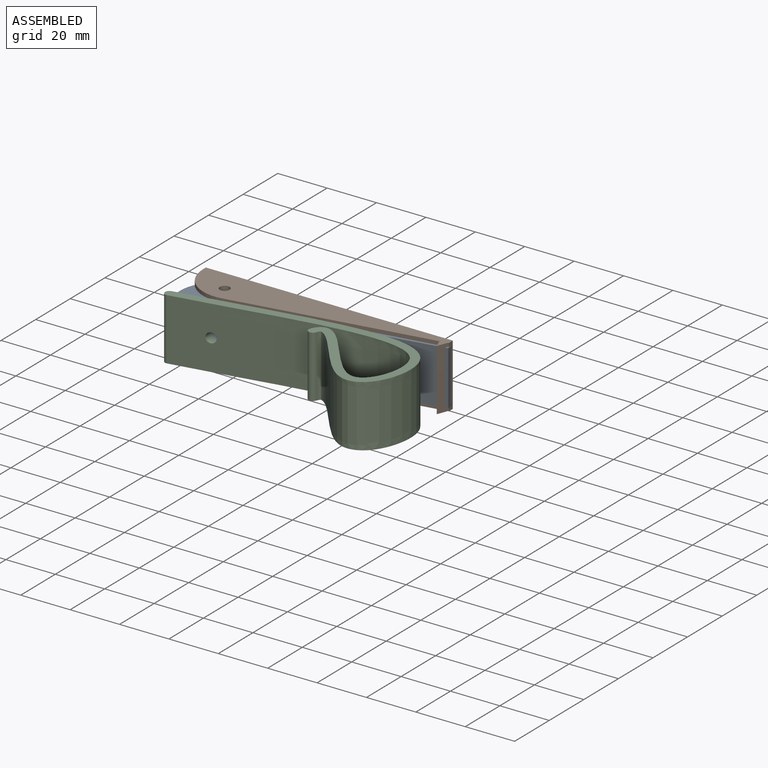
[diagram: assembled view]
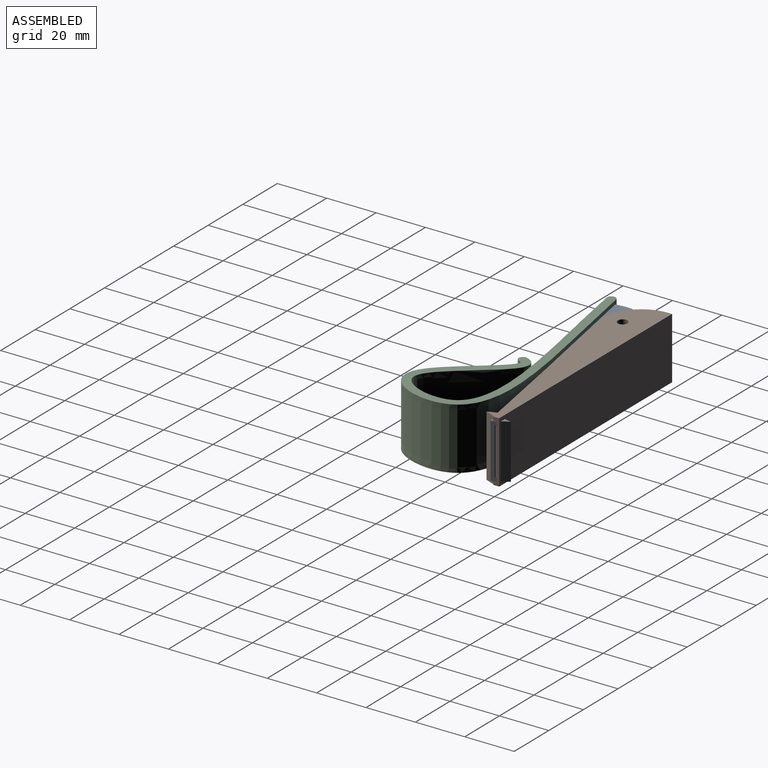
[diagram: assembled view, second angle]
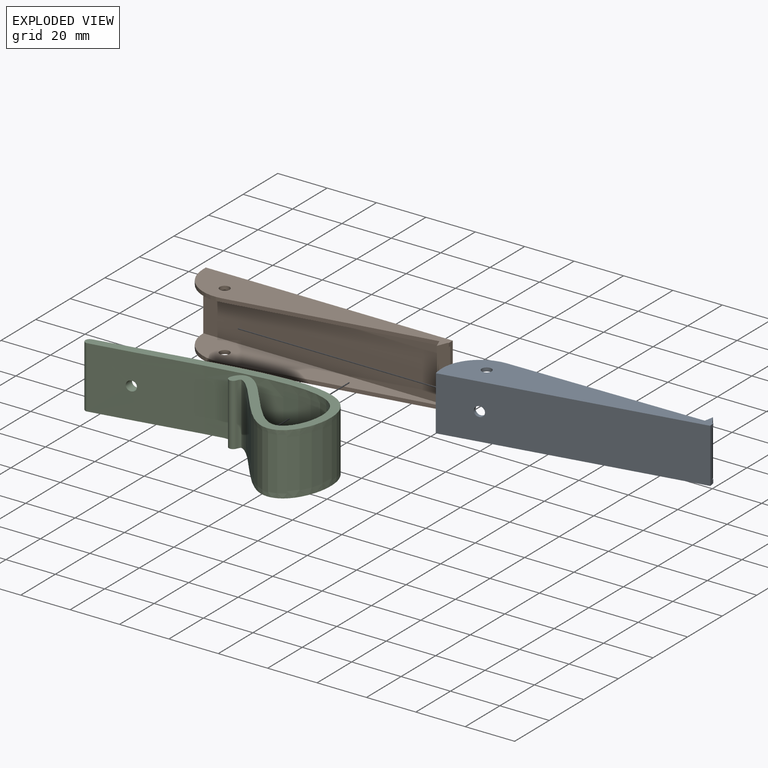
[diagram: exploded view]
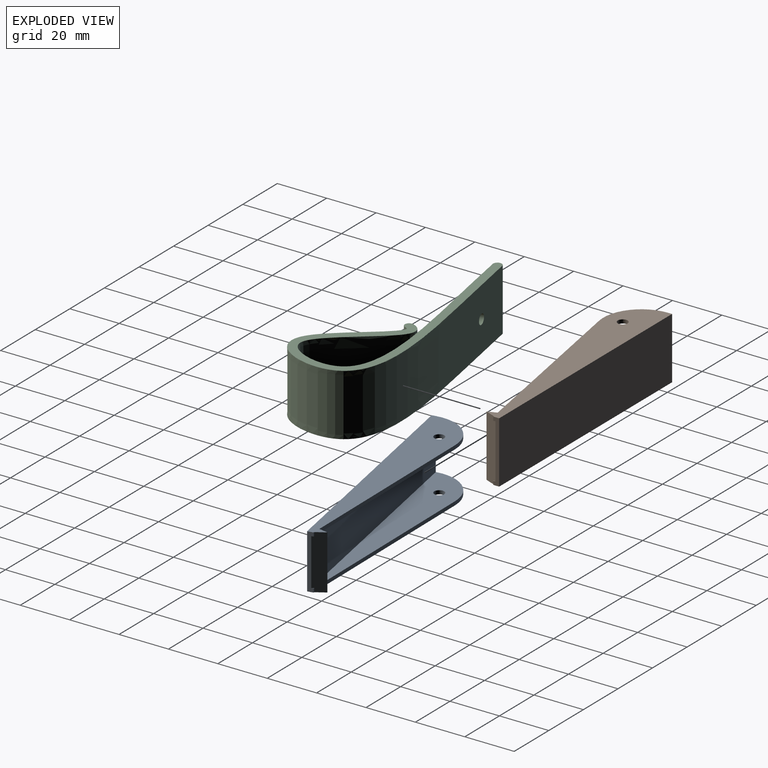
[diagram: exploded view, second angle]
ASSEMBLY  parts=3 mates=2
PART A: 21 faces, bbox 100x17x22 mm
  f0: plane 100x22mm, normal (0,1,0), area 2187.2mm2, adj f7,f8,f10,f11,f20
  f1: plane 96.07x19mm, normal (0,-1,0), area 1812.4mm2, adj f8,f12,f13,f15,f20
  f2: plane 1.5x0.37mm, normal (0.17,-0.98,0), area 0.6mm2, adj f4,f7,f11,f14
  f3: plane 1.5x0.37mm, normal (0.17,-0.98,0), area 0.6mm2, adj f5,f7,f10,f14
  f4: plane 0.93x0.37mm, normal (0,0,1), area 0.2mm2, adj f2,f7,f14
  f5: plane 0.93x0.37mm, normal (0,0,-1), area 0.2mm2, adj f3,f7,f14
  f6: plane 78.48x13.84mm, normal (0.17,-0.98,0), area 119.5mm2, adj f11,f12,f15,f16
  f7: plane 22x2.37mm, normal (1,0,0), area 35.6mm2, adj f0,f2,f3,f4,f5,f10,f11,f14
  f8: plane 22x1.56mm, normal (-1,0,0), area 33.2mm2, adj f0,f1,f10,f11,f12,f13,f16,f17
  f9: plane 78.48x13.84mm, normal (0.17,-0.98,0), area 119.5mm2, adj f10,f13,f15,f17
  f10: plane 100x17.03mm, normal (0,0,1), area 1035mm2, adj f0,f3,f7,f8,f9,f14,f15,f17
  f11: plane 100x17.03mm, normal (0,0,-1), area 1035mm2, adj f0,f2,f6,f7,f8,f14,f15,f16
  f12: plane 96.64x15.53mm, normal (0,0,1), area 875.1mm2, adj f1,f6,f8,f15,f16,f19
  f13: plane 96.64x15.53mm, normal (0,0,-1), area 875.1mm2, adj f1,f8,f9,f15,f17,f18
  f14: plane 22x5mm, normal (0.93,-0.37,0), area 115.2mm2, adj f2,f3,f4,f5,f7,f10,f11,f15
  f15: plane 22x5mm, normal (-0.93,-0.37,0), area 113.5mm2, adj f1,f6,f9,f10,f11,f12,f13,f14
  f16: cylinder r=15.48mm len=18.16mm, axis (0,0,-1), area 40.5mm2, adj f6,f8,f11,f12
  f17: cylinder r=15.48mm len=18.16mm, axis (0,0,-1), area 40.5mm2, adj f8,f9,f10,f13
  f18: cylinder r=2mm len=4mm, axis (0,0,-1), area 18.8mm2, adj f10,f13
  f19: cylinder r=2mm len=4mm, axis (0,0,-1), area 18.8mm2, adj f11,f12
  f20: extruded ~4.07x4mm, area 19mm2, adj f0,f1
PART B: 20 faces, bbox 100x17x25 mm
  f0: plane 96.07x22mm, normal (0,-1,0), area 2113.4mm2, adj f8,f12,f13,f15
  f1: plane 1.5x0.37mm, normal (0.17,-0.98,0), area 0.6mm2, adj f3,f6,f11,f14
  f2: plane 1.5x0.37mm, normal (0.17,-0.98,0), area 0.6mm2, adj f4,f6,f10,f14
  f3: plane 0.93x0.37mm, normal (0,0,1), area 0.2mm2, adj f1,f6,f14
  f4: plane 0.93x0.37mm, normal (0,0,-1), area 0.2mm2, adj f2,f6,f14
  f5: plane 78.45x13.83mm, normal (0.17,-0.98,0), area 119.5mm2, adj f11,f12,f15,f16
  f6: plane 25x2.37mm, normal (1,0,0), area 40.1mm2, adj f1,f2,f3,f4,f7,f10,f11,f14
  f7: plane 100x25mm, normal (0,1,0), area 2500mm2, adj f6,f8,f10,f11
  f8: plane 25x1.53mm, normal (-1,0,0), area 37.6mm2, adj f0,f7,f10,f11,f12,f13,f16,f17
  f9: plane 78.45x13.83mm, normal (0.17,-0.98,0), area 119.5mm2, adj f10,f13,f15,f17
  f10: plane 100x17.03mm, normal (0,0,1), area 1034.8mm2, adj f2,f6,f7,f8,f9,f14,f15,f17
  f11: plane 100x17.03mm, normal (0,0,-1), area 1034.8mm2, adj f1,f5,f6,f7,f8,f14,f15,f16
  f12: plane 96.64x15.53mm, normal (0,0,1), area 874.8mm2, adj f0,f5,f8,f15,f16,f19
  f13: plane 96.64x15.53mm, normal (0,0,-1), area 874.8mm2, adj f0,f8,f9,f15,f17,f18
  f14: plane 25x5mm, normal (0.93,-0.37,0), area 131.3mm2, adj f1,f2,f3,f4,f6,f10,f11,f15
  f15: plane 25x5mm, normal (-0.93,-0.37,0), area 129.6mm2, adj f0,f5,f9,f10,f11,f12,f13,f14
  f16: cylinder r=15.5mm len=18.19mm, axis (0,0,-1), area 40.6mm2, adj f5,f8,f11,f12
  f17: cylinder r=15.5mm len=18.19mm, axis (0,0,-1), area 40.6mm2, adj f8,f9,f10,f13
  f18: cylinder r=2mm len=4mm, axis (0,0,1), area 18.8mm2, adj f10,f13
  f19: cylinder r=2mm len=4mm, axis (0,0,1), area 18.8mm2, adj f11,f12
PART C: 8 faces, bbox 101.9x35.8x25.2 mm
  f0: plane 33.46x25.16mm, normal (-0.18,0.98,0), area 834.3mm2, adj f1,f4,f5,f6,f7
  f1: cylinder r=1.75mm len=25mm, axis (0,0,-1), area 134mm2, adj f0,f2,f5,f6
  f2: extruded ~96.2x28.61mm, area 4229.9mm2, adj f1,f3,f5,f6,f7
  f3: cylinder r=1.75mm len=25mm, axis (0,0,-1), area 135.7mm2, adj f2,f4,f5,f6
  f4: extruded ~66.89x35.48mm, area 3583.6mm2, adj f0,f3,f5,f6
  f5: plane 101.71x35.67mm, normal (0,0,1), area 619.3mm2, adj f0,f1,f2,f3,f4
  f6: plane 101.71x35.67mm, normal (0,0,-1), area 619.3mm2, adj f0,f1,f2,f3,f4
  f7: cylinder r=2mm len=4.42mm, axis (0,-1,0), area 46.2mm2, adj f0,f2
PLACE A rot(axis=(1,0.09,0),180deg) t=(4.45,6.03,6.4)mm
PLACE B t=(3.31,18.88,6.4)mm
PLACE C t=(15.23,-11.41,6.4)mm
MATE revolute C.f0 <-> A.f0  axis (-0.18,0.98,0) through (-26.57,0.23,6.4)mm
MATE revolute A.f18 <-> B.f18  axis (0,0,1) through (-29.79,9.07,17.4)mm
